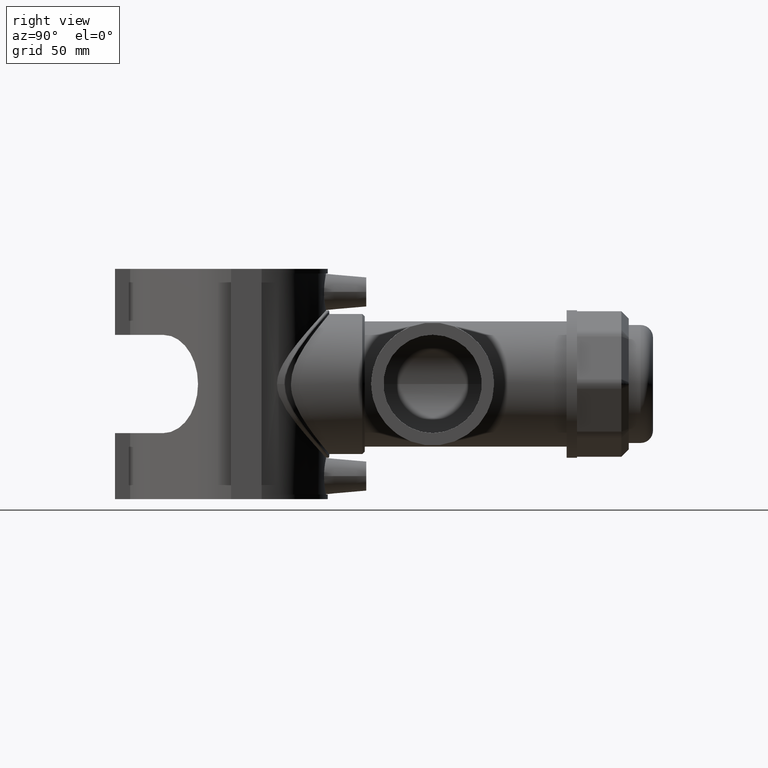
[diagram: clean part render]
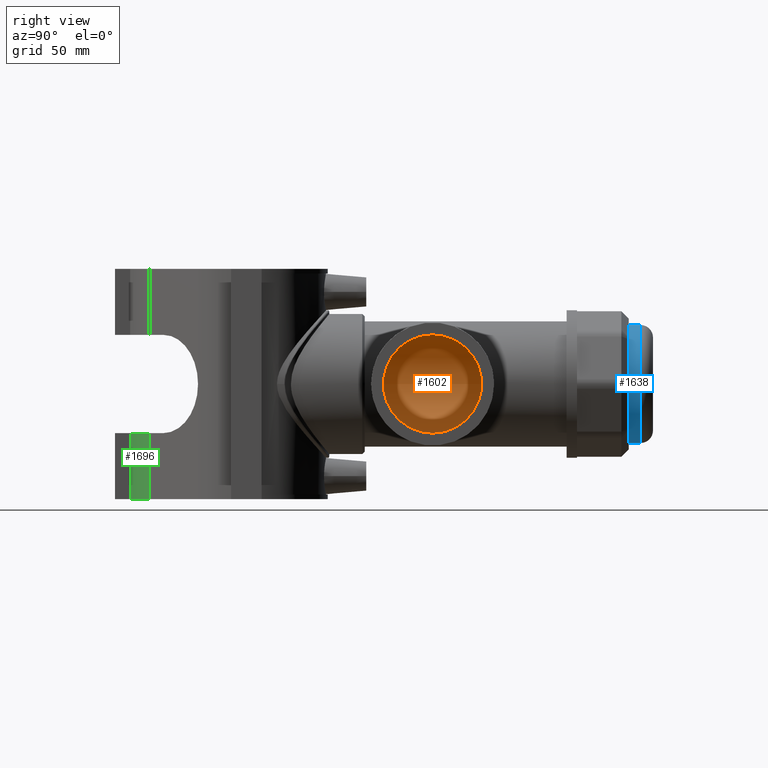
[diagram: same view with three faces highlighted in distinct colors, each labeled with its STEP entity id]
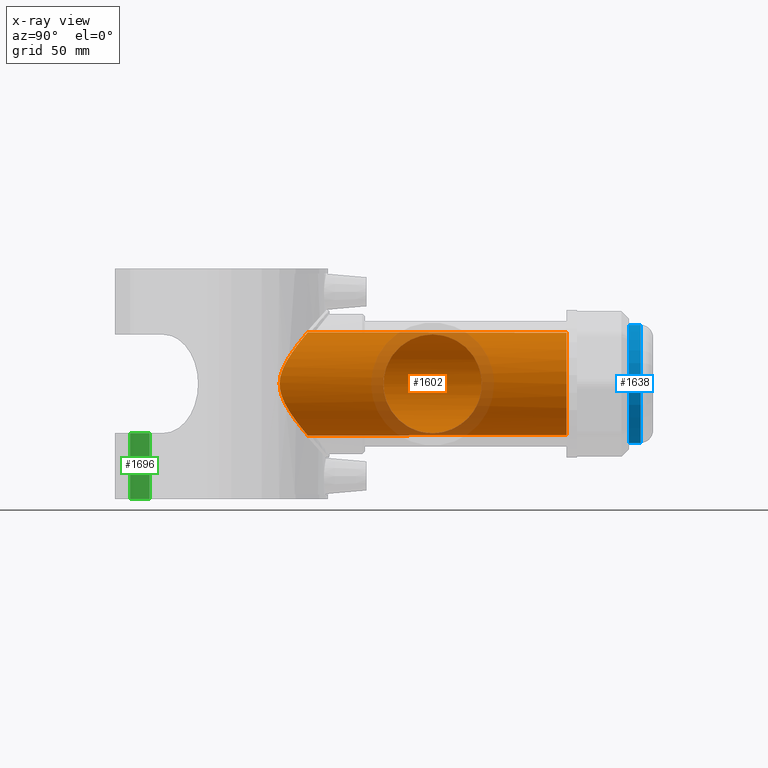
[diagram: x-ray of the same camera — body ghosted, the three highlighted faces saturated]
A machine part, right view with three faces highlighted in distinct colors.
The next image is the same camera in x-ray (body ghosted, the three faces saturated) — at least one of them is partly hidden behind the body in this view.
Their STEP definitions:

[orange] entity #1602 — the highlighted cylindrical surface (bore or boss wall) has radius 26.46 mm, axis along (0, 1, 0).
#308=FACE_BOUND('',#495,.T.);
#309=FACE_BOUND('',#496,.T.);
#340=B_SPLINE_CURVE_WITH_KNOTS('',3,(#2397,#2398,#2399,#2400,#2401,#2402,
#2403,#2404,#2405,#2406,#2407,#2408,#2409,#2410,#2411,#2412,#2413,#2414,
#2415,#2416,#2417,#2418,#2419,#2420,#2421,#2422,#2423,#2424,#2425,#2426,
#2427,#2428,#2429,#2430,#2431,#2432,#2433,#2434,#2435,#2436,#2437,#2438,
#2439,#2440,#2441,#2442,#2443,#2444,#2445,#2446,#2447,#2448,#2449,#2450,
#2451,#2452,#2453,#2454,#2455,#2456,#2457,#2458,#2459,#2460,#2461,#2462),
 .UNSPECIFIED.,.T.,.F.,(4,2,2,2,2,2,2,2,2,2,2,2,2,2,2,2,2,2,2,2,2,2,2,2,
2,2,2,2,2,2,2,2,4),(0.,0.55298564951025,1.1059712990205,1.65895694853075,
2.211942598041,2.74119601258923,3.27044942713746,3.79970284168569,4.32895625623392,
4.85820967078215,5.38746308533038,5.91671649987861,6.44596991442685,6.99895556393709,
7.55194121344735,8.1049268629576,8.65791251246785,9.2108981619781,9.76388381148834,
10.3168694609986,10.8698551105088,11.3991085250571,11.9283619396053,12.4576153541535,
12.9868687687018,13.51612218325,14.0453755977982,14.5746290123465,15.1038824268947,
15.6568680764049,16.2098537259152,16.7628393754254,17.3158250249357),
 .UNSPECIFIED.);
#341=B_SPLINE_CURVE_WITH_KNOTS('',3,(#2464,#2465,#2466,#2467,#2468,#2469,
#2470,#2471,#2472,#2473,#2474,#2475,#2476,#2477,#2478,#2479,#2480,#2481,
#2482,#2483,#2484,#2485,#2486,#2487,#2488,#2489,#2490,#2491,#2492,#2493,
#2494,#2495,#2496,#2497,#2498,#2499,#2500,#2501,#2502,#2503,#2504,#2505,
#2506,#2507,#2508,#2509,#2510,#2511,#2512,#2513,#2514,#2515,#2516,#2517,
#2518,#2519,#2520,#2521,#2522,#2523,#2524,#2525,#2526,#2527,#2528,#2529,
#2530,#2531,#2532,#2533,#2534,#2535,#2536,#2537),.UNSPECIFIED.,.T.,.F.,
(4,2,2,2,2,2,2,2,2,2,2,2,2,2,2,2,2,2,2,2,2,2,2,2,2,2,2,2,2,2,2,2,2,2,2,
2,4),(0.,0.2937744969175,0.587548993835001,1.17509798767,1.762646981505,
2.35019597534,2.86566843393225,3.38114089252451,3.89661335111676,4.41208580970901,
4.92755826830126,5.44303072689351,5.95850318548576,6.47397564407801,7.06152463791301,
7.64907363174801,8.236622625583,8.5303971225005,8.824171619418,9.1179461163355,
9.411720613253,9.999269607088,10.586818600923,11.174367594758,11.6898400533502,
12.2053125119425,12.7207849705347,13.236257429127,13.7517298877192,14.2672023463115,
14.7826748049037,15.298147263496,15.885696257331,16.473245251166,17.060794245001,
17.3545687419185,17.648343238836),.UNSPECIFIED.);
#353=CYLINDRICAL_SURFACE('',#1712,26.46);
#388=FACE_OUTER_BOUND('',#494,.T.);
#494=EDGE_LOOP('',(#1089));
#495=EDGE_LOOP('',(#1090));
#496=EDGE_LOOP('',(#1091));
#631=CIRCLE('',#1711,26.46);
#706=VERTEX_POINT('',#2393);
#707=VERTEX_POINT('',#2396);
#708=VERTEX_POINT('',#2463);
#861=EDGE_CURVE('',#706,#706,#631,.T.);
#862=EDGE_CURVE('',#707,#707,#340,.T.);
#863=EDGE_CURVE('',#708,#708,#341,.T.);
#1089=ORIENTED_EDGE('',*,*,#862,.F.);
#1090=ORIENTED_EDGE('',*,*,#863,.F.);
#1091=ORIENTED_EDGE('',*,*,#861,.T.);
#1602=ADVANCED_FACE('',(#388,#308,#309),#353,.F.);
#1711=AXIS2_PLACEMENT_3D('',#2394,#1894,#1895);
#1712=AXIS2_PLACEMENT_3D('',#2395,#1896,#1897);
#1894=DIRECTION('center_axis',(0.,1.,3.06161699786838E-16));
#1895=DIRECTION('ref_axis',(1.,0.,0.));
#1896=DIRECTION('center_axis',(0.,1.,3.06161699786838E-16));
#1897=DIRECTION('ref_axis',(0.,0.,1.));
#2393=CARTESIAN_POINT('',(-26.46,164.25,4.38833810772467E-14));
#2394=CARTESIAN_POINT('Origin',(0.,164.25,4.06429656467028E-14));
#2395=CARTESIAN_POINT('Origin',(0.,82.1,1.5491782009214E-14));
#2396=CARTESIAN_POINT('',(-26.46,17.0914715574757,4.08006961549745E-14));
#2397=CARTESIAN_POINT('Ctrl Pts',(-26.46,17.0914715574757,4.08006961549745E-14));
#2398=CARTESIAN_POINT('Ctrl Pts',(-26.46,17.0914715574757,1.84328549836754));
#2399=CARTESIAN_POINT('Ctrl Pts',(-26.2676918698715,17.3970937522848,3.6437438490043));
#2400=CARTESIAN_POINT('Ctrl Pts',(-25.5477387907041,18.4381004771188,7.11207064637815));
#2401=CARTESIAN_POINT('Ctrl Pts',(-25.0198330576746,19.1675135401785,8.78167448337146));
#2402=CARTESIAN_POINT('Ctrl Pts',(-23.6672166276766,20.8146223824594,11.9571199110997));
#2403=CARTESIAN_POINT('Ctrl Pts',(-22.841244151801,21.731864649809,13.4636850424662));
#2404=CARTESIAN_POINT('Ctrl Pts',(-20.9407729725977,23.5686317770389,16.2627573366491));
#2405=CARTESIAN_POINT('Ctrl Pts',(-19.8654622725003,24.4882854044312,17.5546285878918));
#2406=CARTESIAN_POINT('Ctrl Pts',(-17.6042150898289,26.1578109656782,19.8158757705632));
#2407=CARTESIAN_POINT('Ctrl Pts',(-16.3434897155068,26.9749560377064,20.8776445668608));
#2408=CARTESIAN_POINT('Ctrl Pts',(-13.5556298798276,28.4781110318786,22.7866319921742));
#2409=CARTESIAN_POINT('Ctrl Pts',(-12.0282430917878,29.1636511342364,23.6338520300171));
#2410=CARTESIAN_POINT('Ctrl Pts',(-8.78759704310187,30.2981080011845,25.0203070879743));
#2411=CARTESIAN_POINT('Ctrl Pts',(-7.07046817197493,30.7478736089855,25.5607629882766));
#2412=CARTESIAN_POINT('Ctrl Pts',(-3.5588179915795,31.3489723306697,26.2807712835143));
#2413=CARTESIAN_POINT('Ctrl Pts',(-1.76417804849411,31.5,26.46));
#2414=CARTESIAN_POINT('Ctrl Pts',(1.7641780484941,31.5,26.46));
#2415=CARTESIAN_POINT('Ctrl Pts',(3.55881799157949,31.3489723306697,26.2807712835143));
#2416=CARTESIAN_POINT('Ctrl Pts',(7.07046817197492,30.7478736089855,25.5607629882766));
#2417=CARTESIAN_POINT('Ctrl Pts',(8.78759704310186,30.2981080011845,25.0203070879743));
#2418=CARTESIAN_POINT('Ctrl Pts',(12.0282430917878,29.1636511342364,23.6338520300171));
#2419=CARTESIAN_POINT('Ctrl Pts',(13.5556298798276,28.4781110318786,22.7866319921742));
#2420=CARTESIAN_POINT('Ctrl Pts',(16.3434897155068,26.9749560377064,20.8776445668608));
#2421=CARTESIAN_POINT('Ctrl Pts',(17.6042150898289,26.1578109656782,19.8158757705632));
#2422=CARTESIAN_POINT('Ctrl Pts',(19.8654622725003,24.4882854044312,17.5546285878918));
#2423=CARTESIAN_POINT('Ctrl Pts',(20.9407729725977,23.5686317770389,16.2627573366491));
#2424=CARTESIAN_POINT('Ctrl Pts',(22.841244151801,21.731864649809,13.4636850424662));
#2425=CARTESIAN_POINT('Ctrl Pts',(23.6672166276766,20.8146223824595,11.9571199110997));
#2426=CARTESIAN_POINT('Ctrl Pts',(25.0198330576745,19.1675135401785,8.78167448337147));
#2427=CARTESIAN_POINT('Ctrl Pts',(25.5477387907041,18.4381004771188,7.11207064637815));
#2428=CARTESIAN_POINT('Ctrl Pts',(26.2676918698715,17.3970937522848,3.6437438490043));
#2429=CARTESIAN_POINT('Ctrl Pts',(26.46,17.0914715574757,1.84328549836754));
#2430=CARTESIAN_POINT('Ctrl Pts',(26.46,17.0914715574757,-1.84328549836746));
#2431=CARTESIAN_POINT('Ctrl Pts',(26.2676918698715,17.3970937522848,-3.64374384900421));
#2432=CARTESIAN_POINT('Ctrl Pts',(25.5477387907041,18.4381004771188,-7.11207064637806));
#2433=CARTESIAN_POINT('Ctrl Pts',(25.0198330576746,19.1675135401785,-8.78167448337138));
#2434=CARTESIAN_POINT('Ctrl Pts',(23.6672166276766,20.8146223824594,-11.9571199110996));
#2435=CARTESIAN_POINT('Ctrl Pts',(22.841244151801,21.731864649809,-13.4636850424661));
#2436=CARTESIAN_POINT('Ctrl Pts',(20.9407729725977,23.5686317770389,-16.262757336649));
#2437=CARTESIAN_POINT('Ctrl Pts',(19.8654622725003,24.4882854044312,-17.5546285878917));
#2438=CARTESIAN_POINT('Ctrl Pts',(17.6042150898289,26.1578109656782,-19.8158757705631));
#2439=CARTESIAN_POINT('Ctrl Pts',(16.3434897155068,26.9749560377063,-20.8776445668607));
#2440=CARTESIAN_POINT('Ctrl Pts',(13.5556298798276,28.4781110318786,-22.7866319921741));
#2441=CARTESIAN_POINT('Ctrl Pts',(12.0282430917878,29.1636511342364,-23.633852030017));
#2442=CARTESIAN_POINT('Ctrl Pts',(8.78759704310188,30.2981080011845,-25.0203070879742));
#2443=CARTESIAN_POINT('Ctrl Pts',(7.07046817197493,30.7478736089855,-25.5607629882765));
#2444=CARTESIAN_POINT('Ctrl Pts',(3.55881799157951,31.3489723306697,-26.2807712835143));
#2445=CARTESIAN_POINT('Ctrl Pts',(1.76417804849411,31.5,-26.4599999999999));
#2446=CARTESIAN_POINT('Ctrl Pts',(-1.76417804849409,31.5,-26.4599999999999));
#2447=CARTESIAN_POINT('Ctrl Pts',(-3.55881799157948,31.3489723306697,-26.2807712835143));
#2448=CARTESIAN_POINT('Ctrl Pts',(-7.07046817197491,30.7478736089855,-25.5607629882765));
#2449=CARTESIAN_POINT('Ctrl Pts',(-8.78759704310185,30.2981080011845,-25.0203070879742));
#2450=CARTESIAN_POINT('Ctrl Pts',(-12.0282430917878,29.1636511342364,-23.633852030017));
#2451=CARTESIAN_POINT('Ctrl Pts',(-13.5556298798276,28.4781110318786,-22.7866319921741));
#2452=CARTESIAN_POINT('Ctrl Pts',(-16.3434897155068,26.9749560377064,-20.8776445668607));
#2453=CARTESIAN_POINT('Ctrl Pts',(-17.6042150898289,26.1578109656782,-19.8158757705631));
#2454=CARTESIAN_POINT('Ctrl Pts',(-19.8654622725003,24.4882854044312,-17.5546285878918));
#2455=CARTESIAN_POINT('Ctrl Pts',(-20.9407729725977,23.5686317770389,-16.262757336649));
#2456=CARTESIAN_POINT('Ctrl Pts',(-22.841244151801,21.731864649809,-13.4636850424661));
#2457=CARTESIAN_POINT('Ctrl Pts',(-23.6672166276766,20.8146223824595,-11.9571199110997));
#2458=CARTESIAN_POINT('Ctrl Pts',(-25.0198330576745,19.1675135401785,-8.78167448337141));
#2459=CARTESIAN_POINT('Ctrl Pts',(-25.5477387907041,18.4381004771188,-7.11207064637809));
#2460=CARTESIAN_POINT('Ctrl Pts',(-26.2676918698715,17.3970937522848,-3.64374384900423));
#2461=CARTESIAN_POINT('Ctrl Pts',(-26.46,17.0914715574757,-1.84328549836747));
#2462=CARTESIAN_POINT('Ctrl Pts',(-26.46,17.0914715574757,3.44169137633799E-14));
#2463=CARTESIAN_POINT('',(8.06793653916512,95.5,-25.2));
#2464=CARTESIAN_POINT('Ctrl Pts',(8.06793653916512,95.5,-25.2));
#2465=CARTESIAN_POINT('Ctrl Pts',(8.06793653916512,94.5207516769417,-25.2));
#2466=CARTESIAN_POINT('Ctrl Pts',(8.24366285866388,93.6240924368777,-25.1447193908453));
#2467=CARTESIAN_POINT('Ctrl Pts',(8.79013866825535,91.9184361286182,-24.9589332259209));
#2468=CARTESIAN_POINT('Ctrl Pts',(9.16108469727618,91.1095780093644,-24.8277308502561));
#2469=CARTESIAN_POINT('Ctrl Pts',(10.442181005675,88.7385322561026,-24.3296486012528));
#2470=CARTESIAN_POINT('Ctrl Pts',(11.5109422054727,87.2356887472281,-23.8602059753298));
#2471=CARTESIAN_POINT('Ctrl Pts',(13.7875797948488,84.2797323401866,-22.621093324488));
#2472=CARTESIAN_POINT('Ctrl Pts',(14.9924524336934,82.8452856310785,-21.8534195101001));
#2473=CARTESIAN_POINT('Ctrl Pts',(17.3479813825214,80.1272767510982,-20.0347976944913));
#2474=CARTESIAN_POINT('Ctrl Pts',(18.499874721354,78.8451401330086,-18.9833219048107));
#2475=CARTESIAN_POINT('Ctrl Pts',(20.4909400727046,76.6594980794726,-16.7976798512746));
#2476=CARTESIAN_POINT('Ctrl Pts',(21.4110720469215,75.6644355167132,-15.6242636621071));
#2477=CARTESIAN_POINT('Ctrl Pts',(23.0944076516088,73.8582053195659,-13.0076883636228));
#2478=CARTESIAN_POINT('Ctrl Pts',(23.8573563509172,73.0471532975309,-11.5642854536495));
#2479=CARTESIAN_POINT('Ctrl Pts',(25.1192510847094,71.7106400520131,-8.48112110487814));
#2480=CARTESIAN_POINT('Ctrl Pts',(25.619361597918,71.1839125026708,-6.83745143271414));
#2481=CARTESIAN_POINT('Ctrl Pts',(26.2898838592351,70.4784409793711,-3.45607255419249));
#2482=CARTESIAN_POINT('Ctrl Pts',(26.46,70.3,-1.71824152864084));
#2483=CARTESIAN_POINT('Ctrl Pts',(26.46,70.3,1.71824152864083));
#2484=CARTESIAN_POINT('Ctrl Pts',(26.2898838592351,70.4784409793711,3.45607255419248));
#2485=CARTESIAN_POINT('Ctrl Pts',(25.619361597918,71.1839125026708,6.83745143271413));
#2486=CARTESIAN_POINT('Ctrl Pts',(25.1192510847095,71.7106400520131,8.48112110487813));
#2487=CARTESIAN_POINT('Ctrl Pts',(23.8573563509172,73.0471532975309,11.5642854536495));
#2488=CARTESIAN_POINT('Ctrl Pts',(23.0944076516088,73.8582053195659,13.0076883636228));
#2489=CARTESIAN_POINT('Ctrl Pts',(21.4110720469216,75.6644355167132,15.6242636621071));
#2490=CARTESIAN_POINT('Ctrl Pts',(20.4909400727046,76.6594980794726,16.7976798512746));
#2491=CARTESIAN_POINT('Ctrl Pts',(18.4998747213541,78.8451401330086,18.9833219048106));
#2492=CARTESIAN_POINT('Ctrl Pts',(17.3479813825215,80.1272767510981,20.0347976944913));
#2493=CARTESIAN_POINT('Ctrl Pts',(14.9924524336935,82.8452856310784,21.8534195101001));
#2494=CARTESIAN_POINT('Ctrl Pts',(13.7875797948489,84.2797323401865,22.621093324488));
#2495=CARTESIAN_POINT('Ctrl Pts',(11.5109422054729,87.235688747228,23.8602059753298));
#2496=CARTESIAN_POINT('Ctrl Pts',(10.4421810056752,88.7385322561026,24.3296486012528));
#2497=CARTESIAN_POINT('Ctrl Pts',(9.16108469727638,91.1095780093644,24.8277308502561));
#2498=CARTESIAN_POINT('Ctrl Pts',(8.79013866825557,91.9184361286182,24.9589332259209));
#2499=CARTESIAN_POINT('Ctrl Pts',(8.24366285866413,93.6240924368777,25.1447193908454));
#2500=CARTESIAN_POINT('Ctrl Pts',(8.06793653916537,94.5207516769417,25.2));
#2501=CARTESIAN_POINT('Ctrl Pts',(8.06793653916537,96.4792483230584,25.2));
#2502=CARTESIAN_POINT('Ctrl Pts',(8.24366285866413,97.3759075631223,25.1447193908453));
#2503=CARTESIAN_POINT('Ctrl Pts',(8.79013866825558,99.0815638713818,24.9589332259209));
#2504=CARTESIAN_POINT('Ctrl Pts',(9.16108469727639,99.8904219906356,24.827730850256));
#2505=CARTESIAN_POINT('Ctrl Pts',(10.4421810056753,102.261467743897,24.3296486012527));
#2506=CARTESIAN_POINT('Ctrl Pts',(11.5109422054729,103.764311252772,23.8602059753298));
#2507=CARTESIAN_POINT('Ctrl Pts',(13.7875797948489,106.720267659813,22.6210933244879));
#2508=CARTESIAN_POINT('Ctrl Pts',(14.9924524336935,108.154714368922,21.8534195101001));
#2509=CARTESIAN_POINT('Ctrl Pts',(17.3479813825215,110.872723248902,20.0347976944913));
#2510=CARTESIAN_POINT('Ctrl Pts',(18.4998747213541,112.154859866991,18.9833219048106));
#2511=CARTESIAN_POINT('Ctrl Pts',(20.4909400727046,114.340501920527,16.7976798512746));
#2512=CARTESIAN_POINT('Ctrl Pts',(21.4110720469216,115.335564483287,15.6242636621071));
#2513=CARTESIAN_POINT('Ctrl Pts',(23.0944076516088,117.141794680434,13.0076883636228));
#2514=CARTESIAN_POINT('Ctrl Pts',(23.8573563509172,117.952846702469,11.5642854536495));
#2515=CARTESIAN_POINT('Ctrl Pts',(25.1192510847095,119.289359947987,8.48112110487813));
#2516=CARTESIAN_POINT('Ctrl Pts',(25.619361597918,119.816087497329,6.83745143271413));
#2517=CARTESIAN_POINT('Ctrl Pts',(26.2898838592351,120.521559020629,3.45607255419247));
#2518=CARTESIAN_POINT('Ctrl Pts',(26.46,120.7,1.71824152864084));
#2519=CARTESIAN_POINT('Ctrl Pts',(26.46,120.7,-1.71824152864083));
#2520=CARTESIAN_POINT('Ctrl Pts',(26.2898838592351,120.521559020629,-3.45607255419248));
#2521=CARTESIAN_POINT('Ctrl Pts',(25.619361597918,119.816087497329,-6.83745143271413));
#2522=CARTESIAN_POINT('Ctrl Pts',(25.1192510847094,119.289359947987,-8.48112110487813));
#2523=CARTESIAN_POINT('Ctrl Pts',(23.8573563509172,117.952846702469,-11.5642854536495));
#2524=CARTESIAN_POINT('Ctrl Pts',(23.0944076516088,117.141794680434,-13.0076883636228));
#2525=CARTESIAN_POINT('Ctrl Pts',(21.4110720469215,115.335564483287,-15.6242636621071));
#2526=CARTESIAN_POINT('Ctrl Pts',(20.4909400727046,114.340501920527,-16.7976798512746));
#2527=CARTESIAN_POINT('Ctrl Pts',(18.499874721354,112.154859866991,-18.9833219048106));
#2528=CARTESIAN_POINT('Ctrl Pts',(17.3479813825214,110.872723248902,-20.0347976944913));
#2529=CARTESIAN_POINT('Ctrl Pts',(14.9924524336934,108.154714368922,-21.8534195101001));
#2530=CARTESIAN_POINT('Ctrl Pts',(13.7875797948488,106.720267659813,-22.621093324488));
#2531=CARTESIAN_POINT('Ctrl Pts',(11.5109422054727,103.764311252772,-23.8602059753298));
#2532=CARTESIAN_POINT('Ctrl Pts',(10.4421810056751,102.261467743897,-24.3296486012527));
#2533=CARTESIAN_POINT('Ctrl Pts',(9.16108469727619,99.8904219906356,-24.827730850256));
#2534=CARTESIAN_POINT('Ctrl Pts',(8.79013866825538,99.0815638713818,-24.9589332259209));
#2535=CARTESIAN_POINT('Ctrl Pts',(8.2436628586639,97.3759075631223,-25.1447193908453));
#2536=CARTESIAN_POINT('Ctrl Pts',(8.06793653916512,96.4792483230584,-25.2));
#2537=CARTESIAN_POINT('Ctrl Pts',(8.06793653916512,95.5,-25.2));

[blue] entity #1638 — the highlighted cylindrical surface (bore or boss wall) has radius 30.24 mm, axis along (0, 1, 0).
#318=FACE_BOUND('',#541,.T.);
#363=CYLINDRICAL_SURFACE('',#1780,30.24);
#424=FACE_OUTER_BOUND('',#540,.T.);
#540=EDGE_LOOP('',(#1229));
#541=EDGE_LOOP('',(#1230));
#657=CIRCLE('',#1768,30.24);
#662=CIRCLE('',#1778,30.24);
#759=VERTEX_POINT('',#2858);
#766=VERTEX_POINT('',#2888);
#938=EDGE_CURVE('',#759,#759,#657,.T.);
#946=EDGE_CURVE('',#766,#766,#662,.T.);
#1229=ORIENTED_EDGE('',*,*,#938,.T.);
#1230=ORIENTED_EDGE('',*,*,#946,.F.);
#1638=ADVANCED_FACE('',(#424,#318),#363,.T.);
#1768=AXIS2_PLACEMENT_3D('',#2859,#2053,#2054);
#1778=AXIS2_PLACEMENT_3D('',#2889,#2074,#2075);
#1780=AXIS2_PLACEMENT_3D('',#2892,#2078,#2079);
#2053=DIRECTION('center_axis',(0.,1.,3.06161699786838E-16));
#2054=DIRECTION('ref_axis',(1.,0.,0.));
#2074=DIRECTION('center_axis',(0.,1.,3.06161699786838E-16));
#2075=DIRECTION('ref_axis',(6.12323399573677E-17,2.9370979487438E-16,-1.));
#2078=DIRECTION('center_axis',(0.,1.,3.06161699786838E-16));
#2079=DIRECTION('ref_axis',(0.,0.,1.));
#2858=CARTESIAN_POINT('',(0.,196.11,30.2400000000001));
#2859=CARTESIAN_POINT('Origin',(0.,196.11,5.03972774019114E-14));
#2888=CARTESIAN_POINT('',(1.8516659603108E-15,202.2,30.2400000000001));
#2889=CARTESIAN_POINT('Origin',(0.,202.2,5.22618021536133E-14));
#2892=CARTESIAN_POINT('Origin',(0.,202.305,5.22939491320909E-14));

[green] entity #1696 — the highlighted cylindrical surface (partial cylindrical patch) has radius 34.9751 mm, axis along (0, 0, -1).
#144=LINE('',#3485,#283);
#151=LINE('',#3498,#290);
#283=VECTOR('',#2326,33.8);
#290=VECTOR('',#2337,33.8);
#383=CYLINDRICAL_SURFACE('',#1873,34.9751164565775);
#482=FACE_OUTER_BOUND('',#620,.T.);
#620=EDGE_LOOP('',(#1477,#1478,#1479,#1480));
#693=CIRCLE('',#1854,34.9751164565775);
#700=CIRCLE('',#1874,34.9751164565775);
#830=VERTEX_POINT('',#3437);
#831=VERTEX_POINT('',#3439);
#844=VERTEX_POINT('',#3484);
#848=VERTEX_POINT('',#3496);
#1034=EDGE_CURVE('',#831,#830,#693,.T.);
#1057=EDGE_CURVE('',#831,#844,#144,.T.);
#1064=EDGE_CURVE('',#830,#848,#151,.T.);
#1067=EDGE_CURVE('',#844,#848,#700,.T.);
#1477=ORIENTED_EDGE('',*,*,#1034,.T.);
#1478=ORIENTED_EDGE('',*,*,#1064,.T.);
#1479=ORIENTED_EDGE('',*,*,#1067,.F.);
#1480=ORIENTED_EDGE('',*,*,#1057,.F.);
#1696=ADVANCED_FACE('',(#482),#383,.T.);
#1854=AXIS2_PLACEMENT_3D('',#3440,#2278,#2279);
#1873=AXIS2_PLACEMENT_3D('',#3503,#2342,#2343);
#1874=AXIS2_PLACEMENT_3D('',#3504,#2344,#2345);
#2278=DIRECTION('center_axis',(-7.47663076451472E-16,-7.47663074675932E-16,
-1.));
#2279=DIRECTION('ref_axis',(-0.119193476174969,-0.992871046630592,0.));
#2326=DIRECTION('',(0.,0.,-1.));
#2337=DIRECTION('',(0.,0.,-1.));
#2342=DIRECTION('center_axis',(0.,0.,-1.));
#2343=DIRECTION('ref_axis',(-0.119193476174969,-0.992871046630592,0.));
#2344=DIRECTION('center_axis',(0.,0.,-1.));
#2345=DIRECTION('ref_axis',(-0.119193476174969,-0.992871046630592,0.));
#3437=CARTESIAN_POINT('',(-21.0749478174158,-59.514629718263,-25.2));
#3439=CARTESIAN_POINT('',(-1.1746235539789E-7,-49.4622840972015,-25.2));
#3440=CARTESIAN_POINT('Origin',(-24.731142107332,-24.7311420486008,-25.2));
#3484=CARTESIAN_POINT('',(-1.1746235539789E-7,-49.4622840972015,-59.));
#3485=CARTESIAN_POINT('',(-1.1746235539789E-7,-49.4622840972015,59.));
#3496=CARTESIAN_POINT('',(-21.0749478174158,-59.514629718263,-59.));
#3498=CARTESIAN_POINT('',(-21.0749478174158,-59.514629718263,59.));
#3503=CARTESIAN_POINT('Origin',(-24.731142107332,-24.7311420486008,59.));
#3504=CARTESIAN_POINT('Origin',(-24.731142107332,-24.7311420486008,-59.));